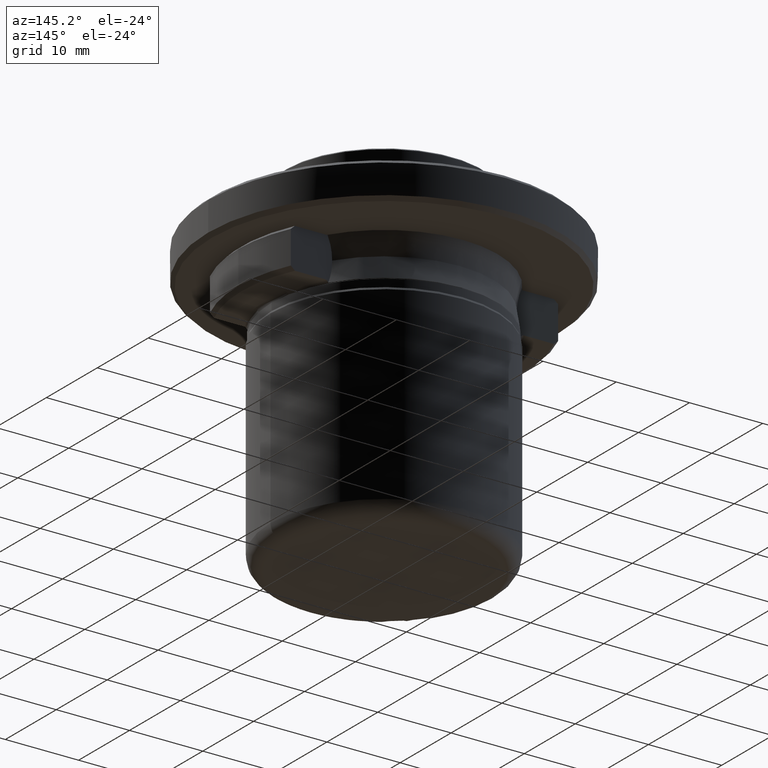
[diagram: clean part render]
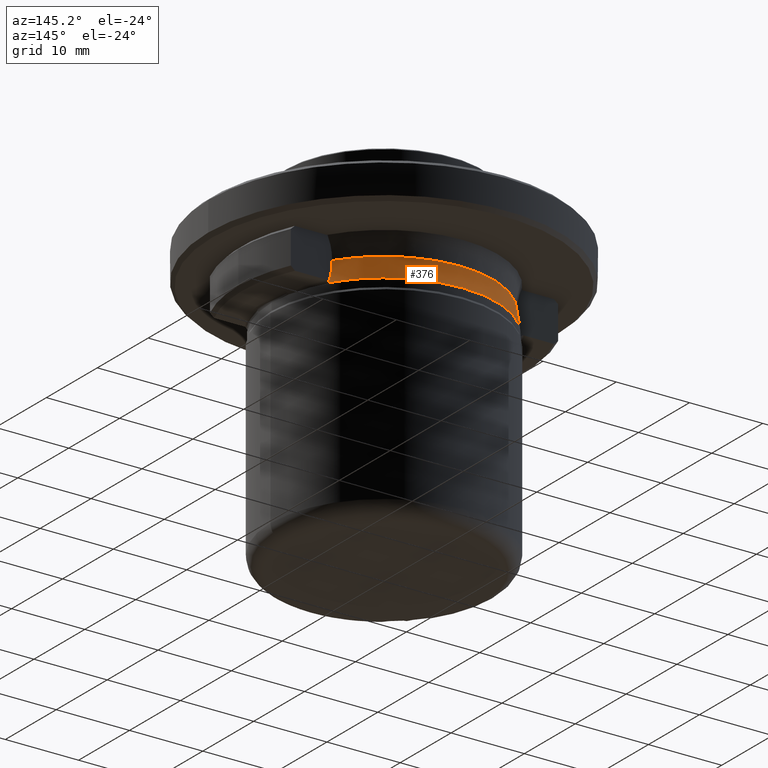
[diagram: same view with one face highlighted and labeled with its STEP entity id]
A machine part, auxiliary view. The second image highlights one B-rep face of the part: STEP entity #376.
In plain terms, the highlighted face is a freeform B-spline surface patch.
Its self-contained STEP definition (entity closure, byte-faithful):
#3 = EDGE_CURVE ( 'NONE', #244, #1007, #1929, .T. ) ;
#15 = CARTESIAN_POINT ( 'NONE',  ( 12.64875544743653700, 7.949999999999998400, 3.506562385760303400 ) ) ;
#27 = CIRCLE ( 'NONE', #1814, 14.89999999993788300 ) ;
#110 = EDGE_CURVE ( 'NONE', #1484, #677, #1350, .T. ) ;
#113 = CARTESIAN_POINT ( 'NONE',  ( 0.0000000000000000000, 0.0000000000000000000, 1.633581561833613100 ) ) ;
#160 = CARTESIAN_POINT ( 'NONE',  ( 12.96762867587357900, 7.950000000000000200, 2.087259395151127400 ) ) ;
#163 = CARTESIAN_POINT ( 'NONE',  ( 0.0000000000000000000, 0.0000000000000000000, 1.633581561833613100 ) ) ;
#167 = CARTESIAN_POINT ( 'NONE',  ( -13.14428442734812200, 7.950000000000002000, 1.633581562600866100 ) ) ;
#244 = VERTEX_POINT ( 'NONE', #337 ) ;
#267 = DIRECTION ( 'NONE',  ( 0.0000000000000000000, -1.000000000000000000, -1.411586627409895500E-017 ) ) ;
#279 = CARTESIAN_POINT ( 'NONE',  ( -12.96447411499999800, 7.624662288999998900, 2.239605722999999900 ) ) ;
#322 = DIRECTION ( 'NONE',  ( 0.0000000000000000000, -1.000000000000000000, -1.411586627409895500E-017 ) ) ;
#337 = CARTESIAN_POINT ( 'NONE',  ( 12.60188477964878700, 7.950000000000000200, 4.478485616234513200 ) ) ;
#376 = ADVANCED_FACE ( 'NONE', ( #387 ), #1625, .F. ) ;
#383 = EDGE_LOOP ( 'NONE', ( #1550, #459, #1972, #1110, #1185 ) ) ;
#387 = FACE_OUTER_BOUND ( 'NONE', #383, .T. ) ;
#390 = CARTESIAN_POINT ( 'NONE',  ( 12.60188477949831700, 7.950000000000000200, 3.991488783843923500 ) ) ;
#400 = CARTESIAN_POINT ( 'NONE',  ( 12.88222540099999900, 7.576290202000000900, 5.376986363999999500 ) ) ;
#438 = CARTESIAN_POINT ( 'NONE',  ( -6.437521500999999100, 18.72266309399999800, 2.239605722999999900 ) ) ;
#458 = CIRCLE ( 'NONE', #1368, 15.36146845588775300 ) ;
#459 = ORIENTED_EDGE ( 'NONE', *, *, #1055, .T. ) ;
#487 = CIRCLE ( 'NONE', #942, 15.36146845588775300 ) ;
#525 = CARTESIAN_POINT ( 'NONE',  ( 1.881237317471986200E-015, 15.36146845589909700, 1.633581561833613400 ) ) ;
#542 = DIRECTION ( 'NONE',  ( -0.0000000000000000000, -0.0000000000000000000, -1.000000000000000000 ) ) ;
#544 = CARTESIAN_POINT ( 'NONE',  ( -6.396680825999999900, 18.60388350000000200, 5.376986363999999500 ) ) ;
#593 = CARTESIAN_POINT ( 'NONE',  ( 6.714773443000000300, 19.52901297599999700, 0.7953634549999998300 ) ) ;
#598 = CARTESIAN_POINT ( 'NONE',  ( -13.14428442734812200, 7.950000000000002000, 1.633581562600866100 ) ) ;
#677 = VERTEX_POINT ( 'NONE', #819 ) ;
#790 = CARTESIAN_POINT ( 'NONE',  ( 13.14428442778773500, 7.950000000000002000, 1.633581561434682500 ) ) ;
#819 = CARTESIAN_POINT ( 'NONE',  ( -12.60188477957813200, 7.950000000000000200, 4.478485616234512400 ) ) ;
#925 = CARTESIAN_POINT ( 'NONE',  ( 12.83224210303494800, 7.949999999999996600, 2.552328995055731700 ) ) ;
#942 = AXIS2_PLACEMENT_3D ( 'NONE', #113, #1177, #267 ) ;
#946 = CARTESIAN_POINT ( 'NONE',  ( 12.60188477964878700, 7.950000000000000200, 4.478485616234513200 ) ) ;
#958 = CARTESIAN_POINT ( 'NONE',  ( -12.60188477949830400, 7.950000000000002000, 3.991451793902284000 ) ) ;
#994 = CARTESIAN_POINT ( 'NONE',  ( 6.396680825999999900, 18.60388350000000200, 5.376986363999999500 ) ) ;
#1007 = VERTEX_POINT ( 'NONE', #1521 ) ;
#1055 = EDGE_CURVE ( 'NONE', #1007, #1165, #458, .T. ) ;
#1073 = CARTESIAN_POINT ( 'NONE',  ( -12.64838670709971600, 7.950000000000000200, 3.509451096258691100 ) ) ;
#1110 = ORIENTED_EDGE ( 'NONE', *, *, #110, .T. ) ;
#1165 = VERTEX_POINT ( 'NONE', #525 ) ;
#1177 = DIRECTION ( 'NONE',  ( 0.0000000000000000000, -7.057933137051727200E-018, 1.000000000000000000 ) ) ;
#1185 = ORIENTED_EDGE ( 'NONE', *, *, #1774, .T. ) ;
#1196 = CARTESIAN_POINT ( 'NONE',  ( 12.96447411499999800, 7.624662288999998900, 2.239605722999999900 ) ) ;
#1228 = DIRECTION ( 'NONE',  ( 0.0000000000000000000, -7.057933137051727200E-018, 1.000000000000000000 ) ) ;
#1246 = CARTESIAN_POINT ( 'NONE',  ( -12.96760611612002200, 7.950000000000002000, 2.087317331901115600 ) ) ;
#1302 = CARTESIAN_POINT ( 'NONE',  ( -12.74601410299999800, 7.496181657999997600, 3.802039048000000100 ) ) ;
#1344 = CARTESIAN_POINT ( 'NONE',  ( -6.329044982000000100, 18.40717376800000300, 3.802039048000000600 ) ) ;
#1350 = B_SPLINE_CURVE_WITH_KNOTS ( 'NONE', 3,
 ( #167, #1246, #1719, #1073, #958, #1379 ),
 .UNSPECIFIED., .F., .F.,
 ( 4, 2, 4 ),
 ( 0.0000000000000000000, 0.001456356939562130200, 0.002912713879124260300 ),
 .UNSPECIFIED. ) ;
#1359 = CARTESIAN_POINT ( 'NONE',  ( -13.52282962900000000, 7.953042152000001900, 0.7953634549999999400 ) ) ;
#1368 = AXIS2_PLACEMENT_3D ( 'NONE', #163, #1228, #322 ) ;
#1379 = CARTESIAN_POINT ( 'NONE',  ( -12.60188477957813200, 7.950000000000000200, 4.478485616234512400 ) ) ;
#1390 = EDGE_CURVE ( 'NONE', #1165, #1484, #487, .T. ) ;
#1449 = CARTESIAN_POINT ( 'NONE',  ( -5.204170427930421300E-015, -2.532479434491641300E-011, 4.478485616159577600 ) ) ;
#1484 = VERTEX_POINT ( 'NONE', #598 ) ;
#1510 = CARTESIAN_POINT ( 'NONE',  ( 13.52282962900000000, 7.953042152000001900, 0.7953634549999999400 ) ) ;
#1521 = CARTESIAN_POINT ( 'NONE',  ( 13.14428442778773500, 7.950000000000002000, 1.633581561434682500 ) ) ;
#1550 = ORIENTED_EDGE ( 'NONE', *, *, #3, .T. ) ;
#1608 = DIRECTION ( 'NONE',  ( -1.000000000000000000, 0.0000000000000000000, 0.0000000000000000000 ) ) ;
#1625 =( BOUNDED_SURFACE ( )  B_SPLINE_SURFACE ( 3, 3, ( 
 ( #1510, #593, #1797, #1359 ),
 ( #1196, #1650, #438, #279 ),
 ( #1670, #1953, #1344, #1302 ),
 ( #400, #994, #544, #1755 ) ),
 .UNSPECIFIED., .F., .F., .F. ) 
 B_SPLINE_SURFACE_WITH_KNOTS ( ( 4, 4 ),
 ( 4, 4 ),
 ( 0.0000000000000000000, 1.000000000000000000 ),
 ( 0.0000000000000000000, 1.000000000000000000 ),
 .UNSPECIFIED. ) 
 GEOMETRIC_REPRESENTATION_ITEM ( )  RATIONAL_B_SPLINE_SURFACE ( (
 ( 1.000000000000000000, 0.6712973884753921100, 0.6712973884753921100, 1.000000000000000000),
 ( 0.9774545972394599300, 0.6561627184801160900, 0.6561627184801160900, 0.9774545972394599300),
 ( 0.9774545972394599300, 0.6561627184801160900, 0.6561627184801160900, 0.9774545972394599300),
 ( 1.000000000000000000, 0.6712973884753921100, 0.6712973884753921100, 1.000000000000000000) ) ) 
 REPRESENTATION_ITEM ( '' )  SURFACE ( )  );
#1650 = CARTESIAN_POINT ( 'NONE',  ( 6.437521500999999100, 18.72266309399999800, 2.239605722999999900 ) ) ;
#1670 = CARTESIAN_POINT ( 'NONE',  ( 12.74601410299999800, 7.496181657999997600, 3.802039048000000100 ) ) ;
#1719 = CARTESIAN_POINT ( 'NONE',  ( -12.83150385492194800, 7.950000000000002000, 2.555203091352257400 ) ) ;
#1755 = CARTESIAN_POINT ( 'NONE',  ( -12.88222540099999900, 7.576290202000000900, 5.376986363999999500 ) ) ;
#1774 = EDGE_CURVE ( 'NONE', #677, #244, #27, .T. ) ;
#1797 = CARTESIAN_POINT ( 'NONE',  ( -6.714773443000000300, 19.52901297599999700, 0.7953634549999998300 ) ) ;
#1814 = AXIS2_PLACEMENT_3D ( 'NONE', #1449, #542, #1608 ) ;
#1929 = B_SPLINE_CURVE_WITH_KNOTS ( 'NONE', 3,
 ( #946, #390, #15, #925, #160, #790 ),
 .UNSPECIFIED., .F., .F.,
 ( 4, 2, 4 ),
 ( 6.878377578730771400E-014, 0.001455991599215522900, 0.002911983198362262300 ),
 .UNSPECIFIED. ) ;
#1953 = CARTESIAN_POINT ( 'NONE',  ( 6.329044982000000100, 18.40717376800000300, 3.802039048000000600 ) ) ;
#1972 = ORIENTED_EDGE ( 'NONE', *, *, #1390, .T. ) ;